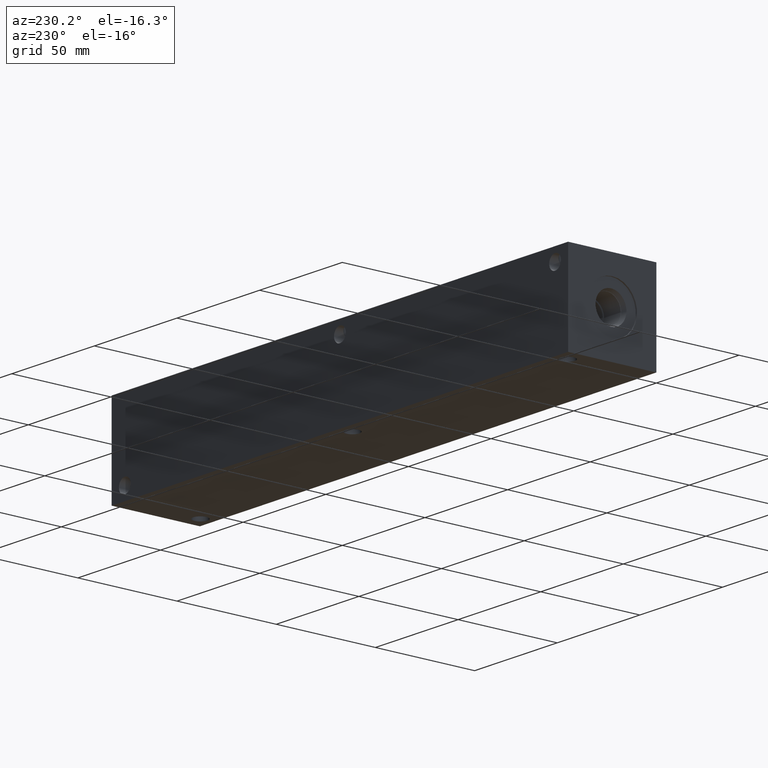
[diagram: clean part render]
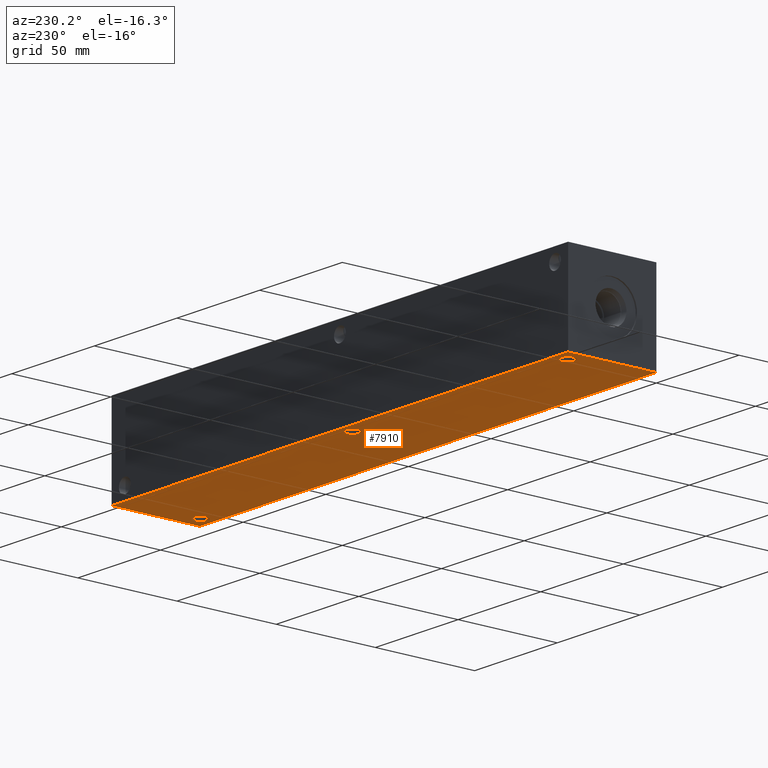
[diagram: same view with one face highlighted and labeled with its STEP entity id]
A machine part, auxiliary view. The second image highlights one B-rep face of the part: STEP entity #7910.
In plain terms, the highlighted planar face has unit normal (0, 0, 1).
Its self-contained STEP definition (entity closure, byte-faithful):
#136=CIRCLE('',#8176,3.5687);
#137=CIRCLE('',#8178,3.5687);
#138=CIRCLE('',#8180,3.5687);
#331=FACE_BOUND('',#1525,.T.);
#332=FACE_BOUND('',#1526,.T.);
#333=FACE_BOUND('',#1527,.T.);
#1052=FACE_OUTER_BOUND('',#1524,.T.);
#1524=EDGE_LOOP('',(#6974,#6975,#6976,#6977));
#1525=EDGE_LOOP('',(#6978));
#1526=EDGE_LOOP('',(#6979));
#1527=EDGE_LOOP('',(#6980));
#2237=LINE('',#13645,#2954);
#2240=LINE('',#13650,#2957);
#2242=LINE('',#13654,#2959);
#2244=LINE('',#13657,#2961);
#2954=VECTOR('',#10063,10.);
#2957=VECTOR('',#10068,10.);
#2959=VECTOR('',#10072,10.);
#2961=VECTOR('',#10076,10.);
#3551=VERTEX_POINT('',#13205);
#3552=VERTEX_POINT('',#13209);
#3553=VERTEX_POINT('',#13213);
#3692=VERTEX_POINT('',#13643);
#3693=VERTEX_POINT('',#13644);
#3694=VERTEX_POINT('',#13649);
#3695=VERTEX_POINT('',#13653);
#4577=EDGE_CURVE('',#3551,#3551,#136,.T.);
#4579=EDGE_CURVE('',#3552,#3552,#137,.T.);
#4581=EDGE_CURVE('',#3553,#3553,#138,.T.);
#4783=EDGE_CURVE('',#3692,#3693,#2237,.T.);
#4786=EDGE_CURVE('',#3694,#3692,#2240,.T.);
#4788=EDGE_CURVE('',#3695,#3694,#2242,.T.);
#4790=EDGE_CURVE('',#3693,#3695,#2244,.T.);
#6974=ORIENTED_EDGE('',*,*,#4790,.F.);
#6975=ORIENTED_EDGE('',*,*,#4783,.F.);
#6976=ORIENTED_EDGE('',*,*,#4786,.F.);
#6977=ORIENTED_EDGE('',*,*,#4788,.F.);
#6978=ORIENTED_EDGE('',*,*,#4577,.T.);
#6979=ORIENTED_EDGE('',*,*,#4579,.T.);
#6980=ORIENTED_EDGE('',*,*,#4581,.T.);
#7204=PLANE('',#8403);
#7910=ADVANCED_FACE('',(#1052,#331,#332,#333),#7204,.F.);
#8176=AXIS2_PLACEMENT_3D('',#13207,#9544,#9545);
#8178=AXIS2_PLACEMENT_3D('',#13211,#9549,#9550);
#8180=AXIS2_PLACEMENT_3D('',#13215,#9554,#9555);
#8403=AXIS2_PLACEMENT_3D('',#13659,#10079,#10080);
#9544=DIRECTION('center_axis',(0.,0.,1.));
#9545=DIRECTION('ref_axis',(1.,0.,0.));
#9549=DIRECTION('center_axis',(0.,0.,1.));
#9550=DIRECTION('ref_axis',(1.,0.,0.));
#9554=DIRECTION('center_axis',(0.,0.,1.));
#9555=DIRECTION('ref_axis',(1.,0.,0.));
#10063=DIRECTION('',(0.,-1.,0.));
#10068=DIRECTION('',(-1.,0.,0.));
#10072=DIRECTION('',(0.,1.,0.));
#10076=DIRECTION('',(1.,0.,0.));
#10079=DIRECTION('center_axis',(0.,0.,1.));
#10080=DIRECTION('ref_axis',(1.,0.,0.));
#13205=CARTESIAN_POINT('',(264.7061,6.35,0.));
#13207=CARTESIAN_POINT('Origin',(268.2748,6.35,0.));
#13209=CARTESIAN_POINT('',(4.3561,38.1,0.));
#13211=CARTESIAN_POINT('Origin',(7.9248,38.1,0.));
#13213=CARTESIAN_POINT('',(134.5565,38.1,0.));
#13215=CARTESIAN_POINT('Origin',(138.1252,38.1,0.));
#13643=CARTESIAN_POINT('',(0.,44.45,0.));
#13644=CARTESIAN_POINT('',(0.,0.,0.));
#13645=CARTESIAN_POINT('',(0.,44.45,0.));
#13649=CARTESIAN_POINT('',(276.225,44.45,0.));
#13650=CARTESIAN_POINT('',(276.225,44.45,0.));
#13653=CARTESIAN_POINT('',(276.225,0.,0.));
#13654=CARTESIAN_POINT('',(276.225,0.,0.));
#13657=CARTESIAN_POINT('',(0.,0.,0.));
#13659=CARTESIAN_POINT('Origin',(138.1125,22.225,0.));